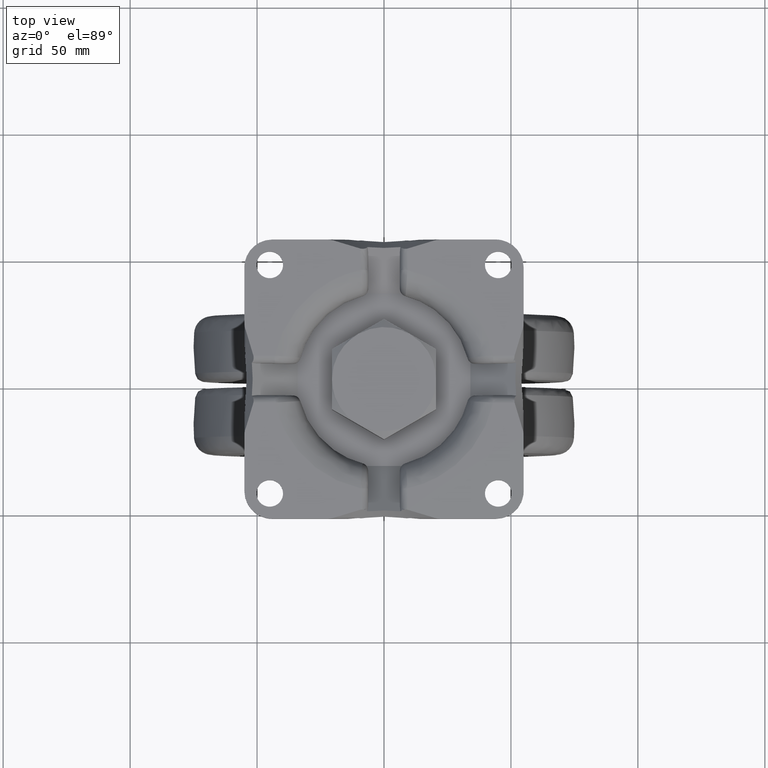
[diagram: clean part render]
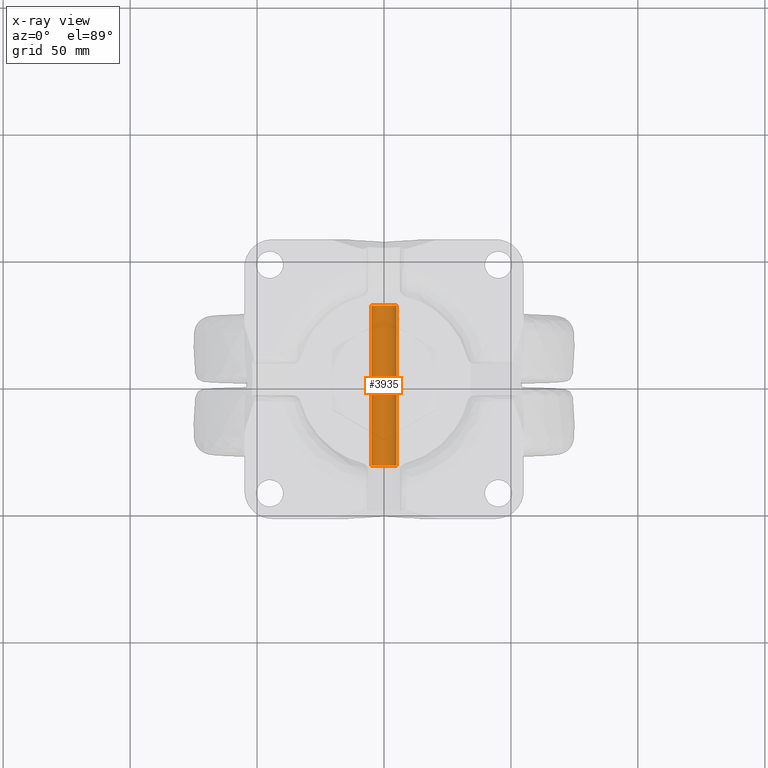
[diagram: x-ray — body ghosted, one internal face saturated and labeled with its STEP entity id]
A machine part, top view, then the same camera in x-ray: the body is ghosted and one INTERNAL B-rep face — a face not visible from any outside direction — is saturated and labeled: STEP entity #3935.
In plain terms, the highlighted face is a freeform B-spline surface patch.
Its self-contained STEP definition (entity closure, byte-faithful):
#3837=CARTESIAN_POINT('',(-4.990673992109334,33.075000000000003,-126.694757302325700));
#3838=CARTESIAN_POINT('',(-5.295916689783620,33.074999999999996,-131.685431294435030));
#3839=CARTESIAN_POINT('',(-0.305242697674285,33.075000000000003,-131.990673992109290));
#3840=CARTESIAN_POINT('',(4.685431294435048,33.074999999999996,-132.295916689783610));
#3841=CARTESIAN_POINT('',(4.990673992109334,33.075000000000003,-127.305242697674300));
#3842=CARTESIAN_POINT('',(-4.990673992109334,-33.114375000000010,-126.694757302325700));
#3843=CARTESIAN_POINT('',(-5.295916689783620,-33.114375000000010,-131.685431294435030));
#3844=CARTESIAN_POINT('',(-0.305242697674285,-33.114375000000010,-131.990673992109290));
#3845=CARTESIAN_POINT('',(4.685431294435048,-33.114375000000010,-132.295916689783610));
#3846=CARTESIAN_POINT('',(4.990673992109334,-33.114375000000010,-127.305242697674300));
#3854=(BOUNDED_SURFACE()B_SPLINE_SURFACE(2,1,((#3837,#3842),(#3838,#3843),(#3839,#3844),(#3840,#3845),(#3841,#3846)),.UNSPECIFIED.,.F.,.F.,.U.)B_SPLINE_SURFACE_WITH_KNOTS((3,2,3),(2,2),(0.0,8.284271247461891,16.568542494923779),(0.0,66.189375000000013),.UNSPECIFIED.)GEOMETRIC_REPRESENTATION_ITEM()RATIONAL_B_SPLINE_SURFACE(((1.0,1.0),(0.707106781186548,0.707106781186548),(1.0,1.0),(0.707106781186548,0.707106781186548),(1.0,1.0)))REPRESENTATION_ITEM('')SURFACE());
#3855=CARTESIAN_POINT('',(0.0,31.500000000000000,-132.0));
#3856=VERTEX_POINT('',#3855);
#3857=CARTESIAN_POINT('',(4.990673992048840,31.500000000000000,-127.305242698663410));
#3858=VERTEX_POINT('',#3857);
#3859=CARTESIAN_POINT('',(0.0,31.500000000000000,-132.0));
#3860=CARTESIAN_POINT('',(4.703530333594566,31.500000000000004,-132.0));
#3861=CARTESIAN_POINT('',(4.990673992048841,31.499999999999996,-127.305242698663390));
#3869=(BOUNDED_CURVE()B_SPLINE_CURVE(2,(#3859,#3860,#3861),.UNSPECIFIED.,.F.,.U.)B_SPLINE_CURVE_WITH_KNOTS((3,3),(0.0,0.239332962207772),.UNSPECIFIED.)CURVE()GEOMETRIC_REPRESENTATION_ITEM()RATIONAL_B_SPLINE_CURVE((1.0,0.719603993323229,0.976072041599913))REPRESENTATION_ITEM(''));
#3870=EDGE_CURVE('',#3856,#3858,#3869,.T.);
#3871=ORIENTED_EDGE('',*,*,#3870,.T.);
#3872=CARTESIAN_POINT('',(4.990673992048839,-31.500000000000000,-127.305242698663410));
#3873=VERTEX_POINT('',#3872);
#3874=CARTESIAN_POINT('',(4.990673992048840,31.500000000000000,-127.305242698663410));
#3875=CARTESIAN_POINT('',(4.990673992048839,-31.500000000000000,-127.305242698663410));
#3876=QUASI_UNIFORM_CURVE('',1,(#3874,#3875),.UNSPECIFIED.,.F.,.U.);
#3877=EDGE_CURVE('',#3858,#3873,#3876,.T.);
#3878=ORIENTED_EDGE('',*,*,#3877,.T.);
#3879=CARTESIAN_POINT('',(0.0,-31.500000000000000,-132.0));
#3880=VERTEX_POINT('',#3879);
#3881=CARTESIAN_POINT('',(0.0,-31.500000000000000,-132.0));
#3882=CARTESIAN_POINT('',(4.703530333594569,-31.500000000000004,-131.999999999999970));
#3883=CARTESIAN_POINT('',(4.990673992048841,-31.500000000000007,-127.305242698663390));
#3891=(BOUNDED_CURVE()B_SPLINE_CURVE(2,(#3881,#3882,#3883),.UNSPECIFIED.,.F.,.U.)B_SPLINE_CURVE_WITH_KNOTS((3,3),(0.0,0.239332962207772),.UNSPECIFIED.)CURVE()GEOMETRIC_REPRESENTATION_ITEM()RATIONAL_B_SPLINE_CURVE((1.0,0.719603993323229,0.976072041599913))REPRESENTATION_ITEM(''));
#3892=EDGE_CURVE('',#3880,#3873,#3891,.T.);
#3893=ORIENTED_EDGE('',*,*,#3892,.F.);
#3894=CARTESIAN_POINT('',(-4.990673992048840,-31.500000000000000,-126.694757301336590));
#3895=VERTEX_POINT('',#3894);
#3896=CARTESIAN_POINT('',(-4.990673992048841,-31.499999999999993,-126.694757301336610));
#3897=CARTESIAN_POINT('',(-5.000000000000001,-31.499999999999996,-126.847236183011120));
#3898=CARTESIAN_POINT('',(-5.0,-31.500000000000000,-127.0));
#3899=CARTESIAN_POINT('',(-5.000000000000001,-31.500000000000000,-132.0));
#3900=CARTESIAN_POINT('',(0.0,-31.500000000000000,-132.0));
#3908=(BOUNDED_CURVE()B_SPLINE_CURVE(2,(#3896,#3897,#3898,#3899,#3900),.UNSPECIFIED.,.F.,.U.)B_SPLINE_CURVE_WITH_KNOTS((3,2,3),(0.739332962207772,0.750000000000000,1.0),.UNSPECIFIED.)CURVE()GEOMETRIC_REPRESENTATION_ITEM()RATIONAL_B_SPLINE_CURVE((0.976072041599913,0.987502787863319,1.0,0.707106781186548,1.0))REPRESENTATION_ITEM(''));
#3909=EDGE_CURVE('',#3895,#3880,#3908,.T.);
#3910=ORIENTED_EDGE('',*,*,#3909,.F.);
#3911=CARTESIAN_POINT('',(-4.990673992048839,31.500000000000000,-126.694757301336590));
#3912=VERTEX_POINT('',#3911);
#3913=CARTESIAN_POINT('',(-4.990673992048839,31.500000000000000,-126.694757301336590));
#3914=CARTESIAN_POINT('',(-4.990673992048840,-31.500000000000000,-126.694757301336590));
#3915=QUASI_UNIFORM_CURVE('',1,(#3913,#3914),.UNSPECIFIED.,.F.,.U.);
#3916=EDGE_CURVE('',#3912,#3895,#3915,.T.);
#3917=ORIENTED_EDGE('',*,*,#3916,.F.);
#3918=CARTESIAN_POINT('',(-4.990673992048841,31.500000000000004,-126.694757301336690));
#3919=CARTESIAN_POINT('',(-4.999999999999999,31.499999999999996,-126.847236183011160));
#3920=CARTESIAN_POINT('',(-5.0,31.500000000000000,-127.0));
#3921=CARTESIAN_POINT('',(-5.000000000000001,31.500000000000000,-132.0));
#3922=CARTESIAN_POINT('',(0.0,31.500000000000000,-132.0));
#3930=(BOUNDED_CURVE()B_SPLINE_CURVE(2,(#3918,#3919,#3920,#3921,#3922),.UNSPECIFIED.,.F.,.U.)B_SPLINE_CURVE_WITH_KNOTS((3,2,3),(0.739332962207772,0.750000000000000,1.0),.UNSPECIFIED.)CURVE()GEOMETRIC_REPRESENTATION_ITEM()RATIONAL_B_SPLINE_CURVE((0.976072041599912,0.987502787863318,1.0,0.707106781186548,1.0))REPRESENTATION_ITEM(''));
#3931=EDGE_CURVE('',#3912,#3856,#3930,.T.);
#3932=ORIENTED_EDGE('',*,*,#3931,.T.);
#3933=EDGE_LOOP('',(#3871,#3878,#3893,#3910,#3917,#3932));
#3934=FACE_OUTER_BOUND('',#3933,.T.);
#3935=ADVANCED_FACE('',(#3934),#3854,.T.);